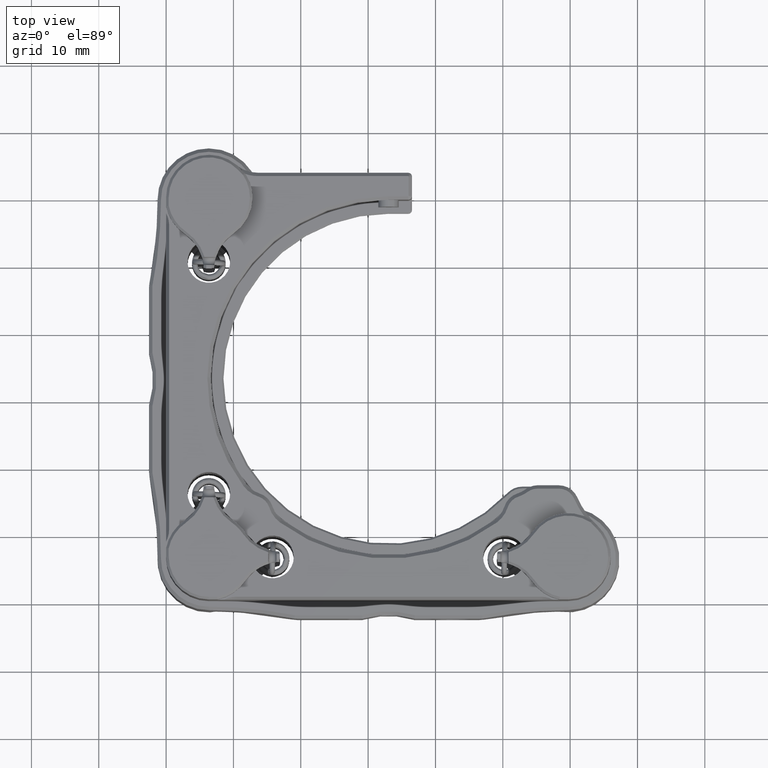
[diagram: clean part render]
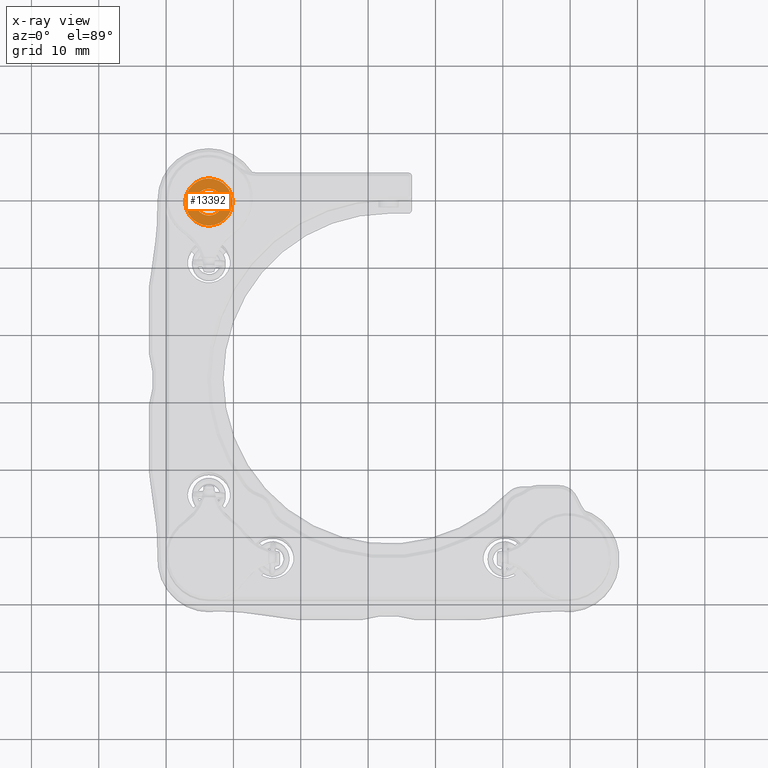
[diagram: x-ray — body ghosted, one internal face saturated and labeled with its STEP entity id]
A machine part, top view, then the same camera in x-ray: the body is ghosted and one INTERNAL B-rep face — a face not visible from any outside direction — is saturated and labeled: STEP entity #13392.
In plain terms, the highlighted planar face has unit normal (0, 0, 1).
Its self-contained STEP definition (entity closure, byte-faithful):
#2971 = AXIS2_PLACEMENT_3D ( 'NONE', #12847, #20150, #4308 ) ;
#3152 = DIRECTION ( 'NONE',  ( 1.000000000000000000, 0.000000000000000000, 0.000000000000000000 ) ) ;
#3173 = CIRCLE ( 'NONE', #11643, 3.500000000000000444 ) ;
#3200 = CARTESIAN_POINT ( 'NONE',  ( 5.500000000000000888, 2.449293598294706414E-16, -2.000000000000000000 ) ) ;
#4064 = VERTEX_POINT ( 'NONE', #19926 ) ;
#4308 = DIRECTION ( 'NONE',  ( 0.000000000000000000, 0.000000000000000000, -1.000000000000000000 ) ) ;
#6529 = FACE_BOUND ( 'NONE', #29060, .T. ) ;
#7528 = VERTEX_POINT ( 'NONE', #21727 ) ;
#7567 = DIRECTION ( 'NONE',  ( 1.000000000000000000, 0.000000000000000000, 0.000000000000000000 ) ) ;
#8688 = DIRECTION ( 'NONE',  ( 1.000000000000000000, 0.000000000000000000, 0.000000000000000000 ) ) ;
#8854 = CIRCLE ( 'NONE', #12154, 3.500000000000000444 ) ;
#9285 = AXIS2_PLACEMENT_3D ( 'NONE', #12125, #3152, #14747 ) ;
#11643 = AXIS2_PLACEMENT_3D ( 'NONE', #27705, #7567, #12260 ) ;
#12125 = CARTESIAN_POINT ( 'NONE',  ( 5.500000000000000888, 0.000000000000000000, 0.000000000000000000 ) ) ;
#12154 = AXIS2_PLACEMENT_3D ( 'NONE', #26485, #8688, #12960 ) ;
#12260 = DIRECTION ( 'NONE',  ( 0.000000000000000000, 0.000000000000000000, -1.000000000000000000 ) ) ;
#12847 = CARTESIAN_POINT ( 'NONE',  ( 5.500000000000000888, 0.000000000000000000, 0.000000000000000000 ) ) ;
#12960 = DIRECTION ( 'NONE',  ( 0.000000000000000000, 0.000000000000000000, -1.000000000000000000 ) ) ;
#13392 = ADVANCED_FACE ( 'NONE', ( #6529, #24420 ), #19731, .T. ) ;
#13760 = AXIS2_PLACEMENT_3D ( 'NONE', #17573, #26567, #15517 ) ;
#14747 = DIRECTION ( 'NONE',  ( 0.000000000000000000, 0.000000000000000000, -1.000000000000000000 ) ) ;
#15517 = DIRECTION ( 'NONE',  ( 0.000000000000000000, 0.000000000000000000, -1.000000000000000000 ) ) ;
#16296 = CIRCLE ( 'NONE', #9285, 2.000000000000000000 ) ;
#17573 = CARTESIAN_POINT ( 'NONE',  ( 5.500000000000000888, 0.000000000000000000, 0.000000000000000000 ) ) ;
#18515 = EDGE_LOOP ( 'NONE', ( #26209, #20121 ) ) ;
#18888 = EDGE_CURVE ( 'NONE', #7528, #4064, #8854, .T. ) ;
#19731 = PLANE ( 'NONE',  #2971 ) ;
#19926 = CARTESIAN_POINT ( 'NONE',  ( 5.500000000000000888, 0.000000000000000000, 3.500000000000000444 ) ) ;
#20121 = ORIENTED_EDGE ( 'NONE', *, *, #18888, .T. ) ;
#20150 = DIRECTION ( 'NONE',  ( 1.000000000000000000, 0.000000000000000000, 0.000000000000000000 ) ) ;
#20779 = CIRCLE ( 'NONE', #13760, 2.000000000000000000 ) ;
#21727 = CARTESIAN_POINT ( 'NONE',  ( 5.500000000000000888, 4.286263797015737088E-16, -3.500000000000000444 ) ) ;
#22004 = EDGE_CURVE ( 'NONE', #24970, #24950, #16296, .T. ) ;
#22156 = EDGE_CURVE ( 'NONE', #4064, #7528, #3173, .T. ) ;
#24420 = FACE_OUTER_BOUND ( 'NONE', #18515, .T. ) ;
#24950 = VERTEX_POINT ( 'NONE', #26132 ) ;
#24970 = VERTEX_POINT ( 'NONE', #3200 ) ;
#26132 = CARTESIAN_POINT ( 'NONE',  ( 5.500000000000000888, 0.000000000000000000, 2.000000000000000000 ) ) ;
#26209 = ORIENTED_EDGE ( 'NONE', *, *, #22156, .T. ) ;
#26485 = CARTESIAN_POINT ( 'NONE',  ( 5.500000000000000888, 0.000000000000000000, 0.000000000000000000 ) ) ;
#26502 = EDGE_CURVE ( 'NONE', #24950, #24970, #20779, .T. ) ;
#26567 = DIRECTION ( 'NONE',  ( 1.000000000000000000, 0.000000000000000000, 0.000000000000000000 ) ) ;
#26883 = ORIENTED_EDGE ( 'NONE', *, *, #22004, .F. ) ;
#27705 = CARTESIAN_POINT ( 'NONE',  ( 5.500000000000000888, 0.000000000000000000, 0.000000000000000000 ) ) ;
#28593 = ORIENTED_EDGE ( 'NONE', *, *, #26502, .F. ) ;
#29060 = EDGE_LOOP ( 'NONE', ( #28593, #26883 ) ) ;